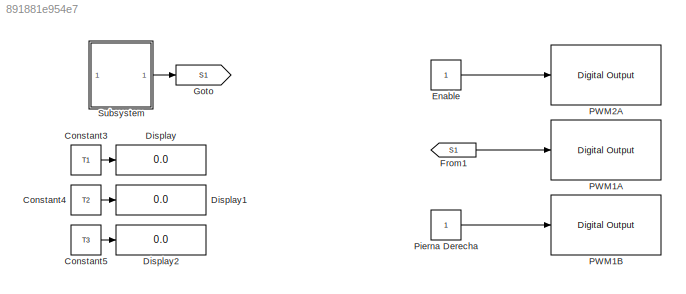
MODEL slx_891881e954e7
KIND model
CONFIG AbsTol = auto
CONFIG EnableMultiTasking = on
CONFIG FixedStep = 0.000001
CONFIG MaxStep = auto
CONFIG MinStep = auto
CONFIG RelTol = 1e-3
CONFIG SampleTimeConstraint = Unconstrained
CONFIG SolverName = FixedStepAuto
CONFIG StartTime = 0.0
CONFIG StopTime = Inf
BLOCK [Constant] Constant3
  Commented = on
  Value = T1
BLOCK [Constant] Constant4
  Commented = on
  Value = T2
BLOCK [Constant] Constant5
  Commented = on
  Value = T3
BLOCK [Display] Display
  Commented = on
  Decimation = 1
BLOCK [Display] Display1
  Commented = on
  Decimation = 1
BLOCK [Display] Display2
  Commented = on
  Decimation = 1
BLOCK [Constant] Enable
BLOCK [From] From1
  Commented = on
  GotoTag = S1
BLOCK [Goto] Goto
  Commented = on
  GotoTag = S1
BLOCK [Reference] PWM1A  REF=c2837xDlib/Digital Output
  Commented = on
  SourceBlock = c2837xDlib/Digital Output
  SourceType = F2837x GPIO Digital Output
  UserDataPersistent = on
BLOCK [Reference] PWM1B  REF=c2837xDlib/Digital Output
  Commented = on
  SourceBlock = c2837xDlib/Digital Output
  SourceType = F2837x GPIO Digital Output
  UserDataPersistent = on
BLOCK [Reference] PWM2A  REF=c2837xDlib/Digital Output
  SourceBlock = c2837xDlib/Digital Output
  SourceType = F2837x GPIO Digital Output
  UserDataPersistent = on
BLOCK [Constant] Pierna Derecha
  Commented = on
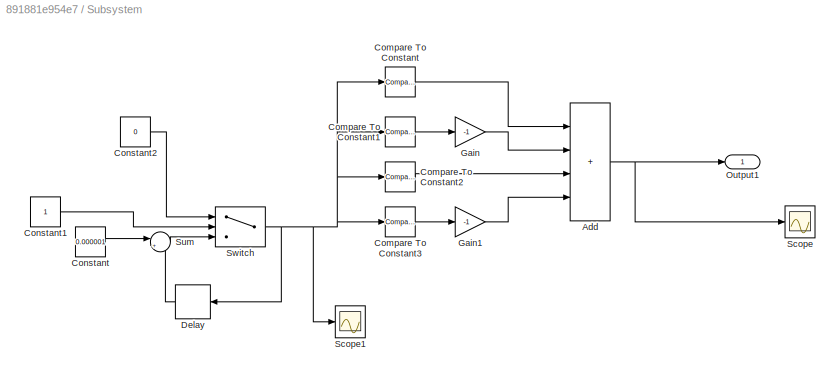
BLOCK [SubSystem] Subsystem
  Commented = on
BLOCK [Sum] Subsystem/Add
  IconShape = rectangular
  Inputs = ++++
BLOCK [Reference] Subsystem/Compare To Constant  REF=simulink/Logic and Bit
Operations/Compare
To Constant
  SourceBlock = simulink/Logic and Bit\nOperations/Compare\nTo Constant
  SourceType = Compare To Constant
BLOCK [Reference] Subsystem/Compare To Constant1  REF=simulink/Logic and Bit
Operations/Compare
To Constant
  SourceBlock = simulink/Logic and Bit\nOperations/Compare\nTo Constant
  SourceType = Compare To Constant
BLOCK [Reference] Subsystem/Compare To Constant2  REF=simulink/Logic and Bit
Operations/Compare
To Constant
  SourceBlock = simulink/Logic and Bit\nOperations/Compare\nTo Constant
  SourceType = Compare To Constant
BLOCK [Reference] Subsystem/Compare To Constant3  REF=simulink/Logic and Bit
Operations/Compare
To Constant
  SourceBlock = simulink/Logic and Bit\nOperations/Compare\nTo Constant
  SourceType = Compare To Constant
BLOCK [Constant] Subsystem/Constant
  Value = 0.000001
BLOCK [Constant] Subsystem/Constant1
BLOCK [Constant] Subsystem/Constant2
  Value = 0
BLOCK [Delay] Subsystem/Delay
  DelayLength = 1
  InputPortMap = u0
  NameLocation = top
BLOCK [Gain] Subsystem/Gain
  Gain = -1
BLOCK [Gain] Subsystem/Gain1
  Gain = -1
BLOCK [Outport] Subsystem/Output1
BLOCK [Scope] Subsystem/Scope
  Floating = off
  NumInputPorts = 1
  ScopeSpecificationString = Simulink.scopes.TimeScopeBlockCfg('CurrentConfiguration', extmgr.ConfigurationSet(extmgr.Configuration('Core','General UI',true,'FigureColor',[1 1 1]),extmgr.Configuration('Core','Source UI',true),extmgr.Configuration('Sources','WiredSimulink',true,'DataLoggingVariableName','ScopeData1'),extmgr.Configuration('Visuals','Time Domain',true,'SerializedDisplays',{struct('MinYLimReal','-0.125','MaxYLimR...<+1615ch>
BLOCK [Scope] Subsystem/Scope1
  Floating = off
  NumInputPorts = 1
  ScopeSpecificationString = Simulink.scopes.TimeScopeBlockCfg('CurrentConfiguration', extmgr.ConfigurationSet(extmgr.Configuration('Core','General UI',true,'FigureColor',[1 1 1]),extmgr.Configuration('Core','Source UI',true),extmgr.Configuration('Sources','WiredSimulink',true,'DataLoggingVariableName','ScopeData1'),extmgr.Configuration('Visuals','Time Domain',true,'SerializedDisplays',{struct('MinYLimReal','-0.125','MaxYLimR...<+1615ch>
BLOCK [Sum] Subsystem/Sum
  Inputs = |++
BLOCK [Switch] Subsystem/Switch
  Criteria = u2 > Threshold
  InputSameDT = off
  SaturateOnIntegerOverflow = off
  Threshold = 0.5
LINE Constant3:1 -> Display:1
LINE Constant4:1 -> Display1:1
LINE Constant5:1 -> Display2:1
LINE Enable:1 -> PWM2A:1
LINE From1:1 -> PWM1A:1
LINE Pierna Derecha:1 -> PWM1B:1
NET Subsystem/Add:1 -> Subsystem/Output1:1, Subsystem/Scope:1
LINE Subsystem/Compare To Constant1:1 -> Subsystem/Gain:1
LINE Subsystem/Compare To Constant2:1 -> Subsystem/Add:3
LINE Subsystem/Compare To Constant3:1 -> Subsystem/Gain1:1
LINE Subsystem/Compare To Constant:1 -> Subsystem/Add:1
LINE Subsystem/Constant1:1 -> Subsystem/Switch:2
LINE Subsystem/Constant2:1 -> Subsystem/Switch:1
LINE Subsystem/Constant:1 -> Subsystem/Sum:1
LINE Subsystem/Delay:1 -> Subsystem/Sum:2
LINE Subsystem/Gain1:1 -> Subsystem/Add:4
LINE Subsystem/Gain:1 -> Subsystem/Add:2
LINE Subsystem/Sum:1 -> Subsystem/Switch:3
NET Subsystem/Switch:1 -> Subsystem/Compare To Constant1:1, Subsystem/Compare To Constant2:1, Subsystem/Compare To Constant3:1, Subsystem/Compare To Constant:1, Subsystem/Delay:1, Subsystem/Scope1:1
LINE Subsystem:1 -> Goto:1
note: NET lines group one-source signal fan-out (src -> all destinations, sorted); 1:1 wires keep LINE
